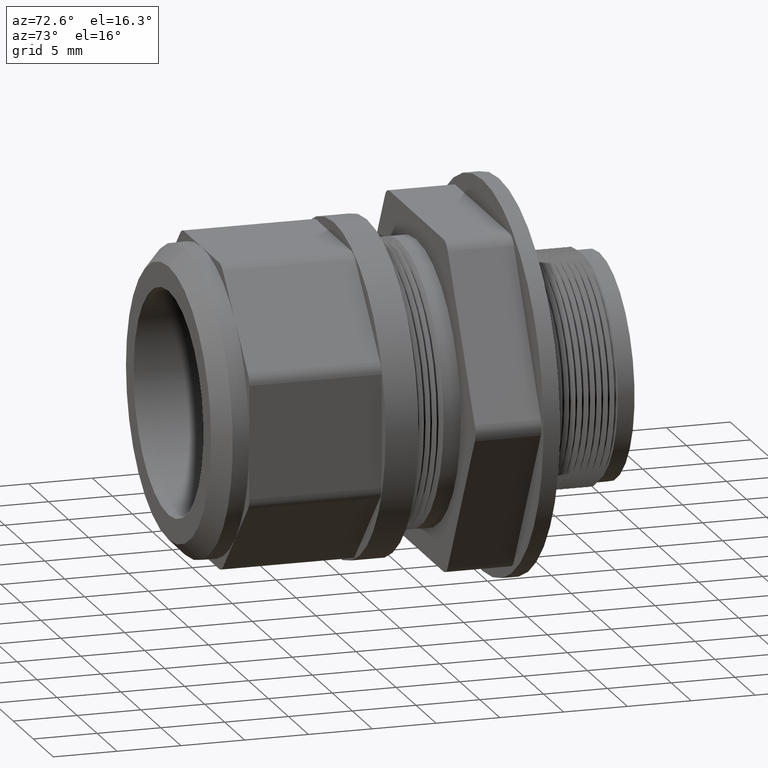
[diagram: clean part render]
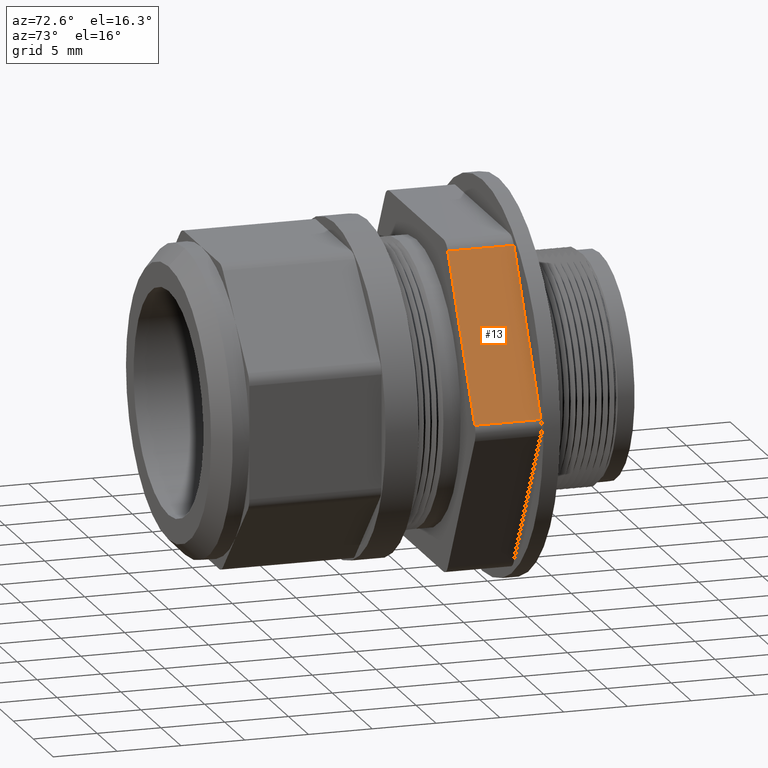
[diagram: same view with one face highlighted and labeled with its STEP entity id]
A machine part, auxiliary view. The second image highlights one B-rep face of the part: STEP entity #13.
In plain terms, the highlighted planar face has unit normal (0.866, 0, 0.5).
Its self-contained STEP definition (entity closure, byte-faithful):
#7 = ORIENTED_EDGE ( 'NONE', *, *, #102, .F. ) ;
#8 = EDGE_LOOP ( 'NONE', ( #11, #9, #7, #405 ) ) ;
#9 = ORIENTED_EDGE ( 'NONE', *, *, #10, .T. ) ;
#10 = EDGE_CURVE ( 'NONE', #6323, #101, #1244, .T. ) ;
#11 = ORIENTED_EDGE ( 'NONE', *, *, #6320, .T. ) ;
#13 = ADVANCED_FACE ( 'NONE', ( #1235 ), #1281, .T. ) ;
#101 = VERTEX_POINT ( 'NONE', #1579 ) ;
#102 = EDGE_CURVE ( 'NONE', #320, #101, #1578, .T. ) ;
#320 = VERTEX_POINT ( 'NONE', #2300 ) ;
#402 = EDGE_CURVE ( 'NONE', #320, #6317, #2602, .T. ) ;
#405 = ORIENTED_EDGE ( 'NONE', *, *, #402, .T. ) ;
#1235 = FACE_OUTER_BOUND ( 'NONE', #8, .T. ) ;
#1241 = DIRECTION ( 'NONE',  ( 0.0000000000000000000, -1.000000000000000000, 0.0000000000000000000 ) ) ;
#1242 = VECTOR ( 'NONE', #1241, 39.37007874015748100 ) ;
#1243 = CARTESIAN_POINT ( 'NONE',  ( 0.3088823940164499600, 0.9690000000000000800, 0.4850000000000001000 ) ) ;
#1244 = LINE ( 'NONE', #1243, #1242 ) ;
#1277 = DIRECTION ( 'NONE',  ( 0.4999999999999998300, 0.0000000000000000000, -0.8660254037844386000 ) ) ;
#1278 = DIRECTION ( 'NONE',  ( 0.8660254037844387100, 0.0000000000000000000, 0.4999999999999998900 ) ) ;
#1279 = CARTESIAN_POINT ( 'NONE',  ( 0.5888972745734182300, 0.9690000000000000800, 2.397902313734448100E-016 ) ) ;
#1280 = AXIS2_PLACEMENT_3D ( 'NONE', #1279, #1278, #1277 ) ;
#1281 = PLANE ( 'NONE',  #1280 ) ;
#1575 = DIRECTION ( 'NONE',  ( -0.4999999999999998300, 0.0000000000000000000, 0.8660254037844388200 ) ) ;
#1576 = VECTOR ( 'NONE', #1575, 39.37007874015748100 ) ;
#1577 = CARTESIAN_POINT ( 'NONE',  ( 0.5888972745734182300, 0.7650000000000000100, 2.397902313734448100E-016 ) ) ;
#1578 = LINE ( 'NONE', #1577, #1576 ) ;
#1579 = CARTESIAN_POINT ( 'NONE',  ( 0.3088823940164500100, 0.7650000000000000100, 0.4850000000000001000 ) ) ;
#2300 = CARTESIAN_POINT ( 'NONE',  ( 0.5744635178436775500, 0.7650000000000000100, 0.02500000000000029300 ) ) ;
#2599 = DIRECTION ( 'NONE',  ( 0.0000000000000000000, 1.000000000000000000, 0.0000000000000000000 ) ) ;
#2600 = VECTOR ( 'NONE', #2599, 39.37007874015748100 ) ;
#2601 = CARTESIAN_POINT ( 'NONE',  ( 0.5744635178436775500, 0.9690000000000000800, 0.02500000000000029300 ) ) ;
#2602 = LINE ( 'NONE', #2601, #2600 ) ;
#6057 = CARTESIAN_POINT ( 'NONE',  ( 0.3088823940164500100, 0.9690000000000000800, 0.4850000000000001000 ) ) ;
#6063 = DIRECTION ( 'NONE',  ( -0.4999999999999998300, 0.0000000000000000000, 0.8660254037844388200 ) ) ;
#6064 = VECTOR ( 'NONE', #6063, 39.37007874015748100 ) ;
#6065 = CARTESIAN_POINT ( 'NONE',  ( 0.5888972745734182300, 0.9690000000000000800, 2.397902313734448100E-016 ) ) ;
#6066 = LINE ( 'NONE', #6065, #6064 ) ;
#6072 = CARTESIAN_POINT ( 'NONE',  ( 0.5744635178436775500, 0.9690000000000000800, 0.02500000000000029300 ) ) ;
#6317 = VERTEX_POINT ( 'NONE', #6072 ) ;
#6320 = EDGE_CURVE ( 'NONE', #6317, #6323, #6066, .T. ) ;
#6323 = VERTEX_POINT ( 'NONE', #6057 ) ;